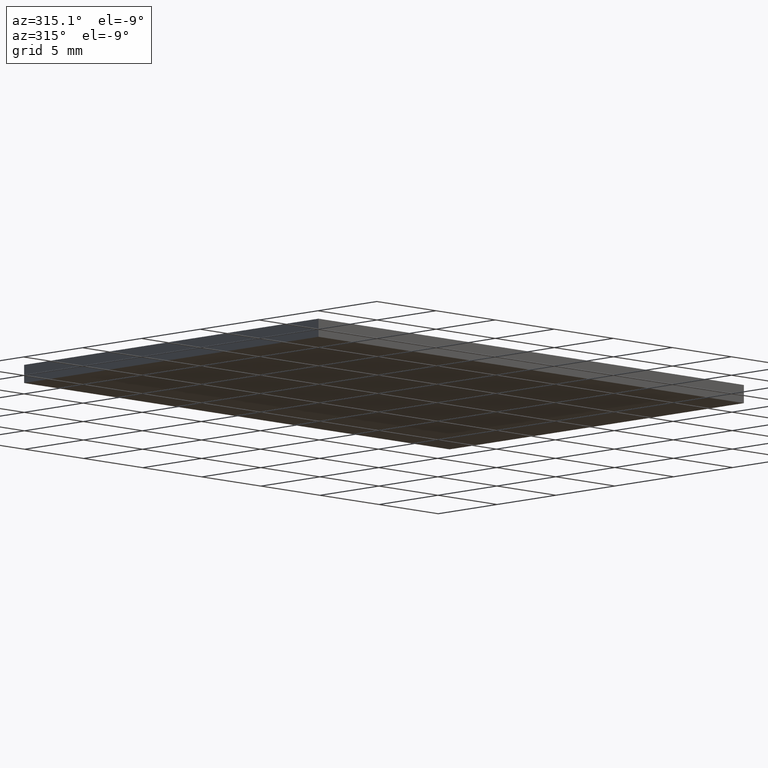
[diagram: clean part render]
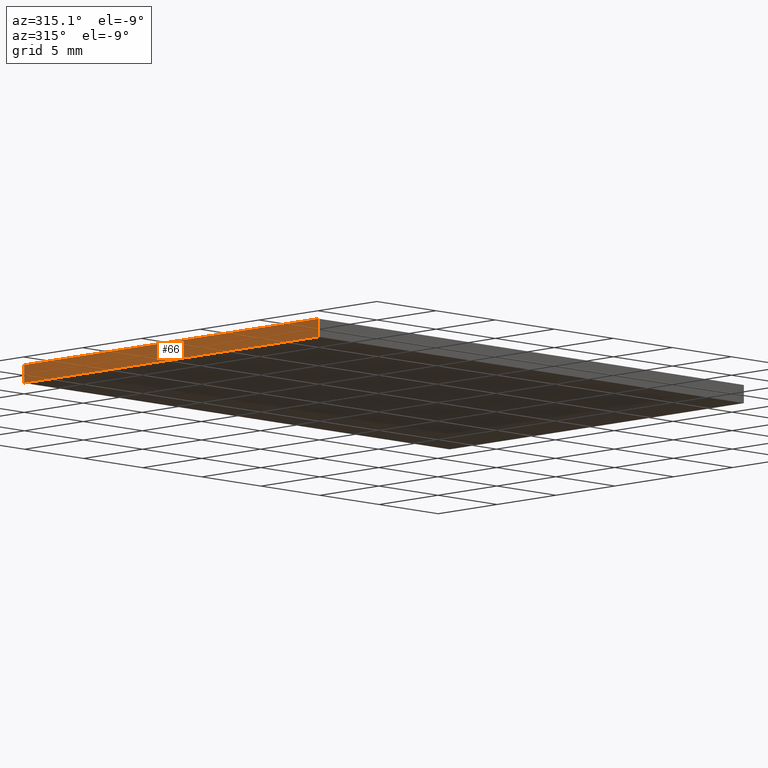
[diagram: same view with one face highlighted and labeled with its STEP entity id]
A machine part, auxiliary view. The second image highlights one B-rep face of the part: STEP entity #66.
In plain terms, the highlighted planar face has unit normal (1, 0, 0).
Its self-contained STEP definition (entity closure, byte-faithful):
#2 = ORIENTED_EDGE ( 'NONE', *, *, #132, .T. ) ;
#10 = PLANE ( 'NONE',  #70 ) ;
#12 = VECTOR ( 'NONE', #79, 1000.000000000000000 ) ;
#17 = CARTESIAN_POINT ( 'NONE',  ( 0.000000000000000000, 0.000000000000000000, 0.000000000000000000 ) ) ;
#18 = VECTOR ( 'NONE', #22, 1000.000000000000000 ) ;
#20 = VERTEX_POINT ( 'NONE', #109 ) ;
#22 = DIRECTION ( 'NONE',  ( -0.000000000000000000, -0.000000000000000000, -1.000000000000000000 ) ) ;
#31 = VERTEX_POINT ( 'NONE', #17 ) ;
#34 = CARTESIAN_POINT ( 'NONE',  ( 0.000000000000000000, 0.000000000000000000, 1.100000000000000089 ) ) ;
#37 = DIRECTION ( 'NONE',  ( -0.000000000000000000, -0.000000000000000000, -1.000000000000000000 ) ) ;
#46 = ORIENTED_EDGE ( 'NONE', *, *, #97, .F. ) ;
#59 = VERTEX_POINT ( 'NONE', #80 ) ;
#66 = ADVANCED_FACE ( 'NONE', ( #82 ), #10, .F. ) ;
#67 = CARTESIAN_POINT ( 'NONE',  ( 0.000000000000000000, 0.000000000000000000, 1.100000000000000089 ) ) ;
#68 = CARTESIAN_POINT ( 'NONE',  ( 0.000000000000000000, 0.000000000000000000, 1.100000000000000089 ) ) ;
#69 = EDGE_LOOP ( 'NONE', ( #77, #46, #131, #2 ) ) ;
#70 = AXIS2_PLACEMENT_3D ( 'NONE', #146, #178, #198 ) ;
#77 = ORIENTED_EDGE ( 'NONE', *, *, #170, .T. ) ;
#79 = DIRECTION ( 'NONE',  ( -0.000000000000000000, -1.000000000000000000, -0.000000000000000000 ) ) ;
#80 = CARTESIAN_POINT ( 'NONE',  ( 0.000000000000000000, 25.00000000000000000, 1.100000000000000089 ) ) ;
#82 = FACE_OUTER_BOUND ( 'NONE', #69, .T. ) ;
#97 = EDGE_CURVE ( 'NONE', #167, #31, #177, .T. ) ;
#102 = CARTESIAN_POINT ( 'NONE',  ( 0.000000000000000000, 0.000000000000000000, 0.000000000000000000 ) ) ;
#109 = CARTESIAN_POINT ( 'NONE',  ( 0.000000000000000000, 25.00000000000000000, 0.000000000000000000 ) ) ;
#114 = LINE ( 'NONE', #128, #164 ) ;
#119 = EDGE_CURVE ( 'NONE', #59, #167, #195, .T. ) ;
#128 = CARTESIAN_POINT ( 'NONE',  ( 0.000000000000000000, 25.00000000000000000, 1.100000000000000089 ) ) ;
#131 = ORIENTED_EDGE ( 'NONE', *, *, #119, .F. ) ;
#132 = EDGE_CURVE ( 'NONE', #59, #20, #114, .T. ) ;
#146 = CARTESIAN_POINT ( 'NONE',  ( 0.000000000000000000, 0.000000000000000000, 1.100000000000000089 ) ) ;
#147 = VECTOR ( 'NONE', #180, 1000.000000000000000 ) ;
#164 = VECTOR ( 'NONE', #37, 1000.000000000000000 ) ;
#167 = VERTEX_POINT ( 'NONE', #68 ) ;
#170 = EDGE_CURVE ( 'NONE', #20, #31, #176, .T. ) ;
#176 = LINE ( 'NONE', #102, #147 ) ;
#177 = LINE ( 'NONE', #67, #18 ) ;
#178 = DIRECTION ( 'NONE',  ( 1.000000000000000000, 0.000000000000000000, 0.000000000000000000 ) ) ;
#180 = DIRECTION ( 'NONE',  ( -0.000000000000000000, -1.000000000000000000, -0.000000000000000000 ) ) ;
#195 = LINE ( 'NONE', #34, #12 ) ;
#198 = DIRECTION ( 'NONE',  ( 0.000000000000000000, 0.000000000000000000, -1.000000000000000000 ) ) ;